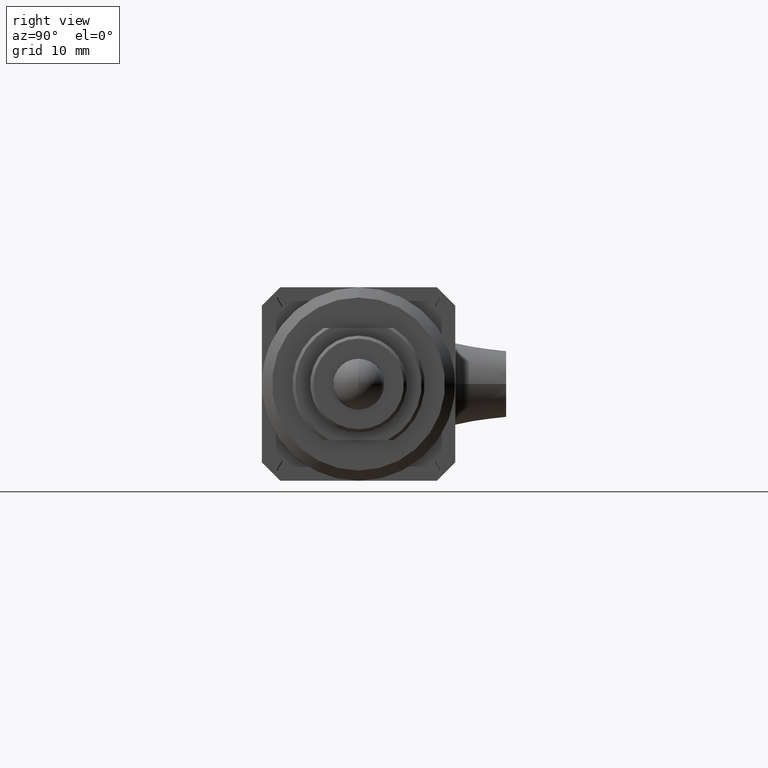
[diagram: clean part render]
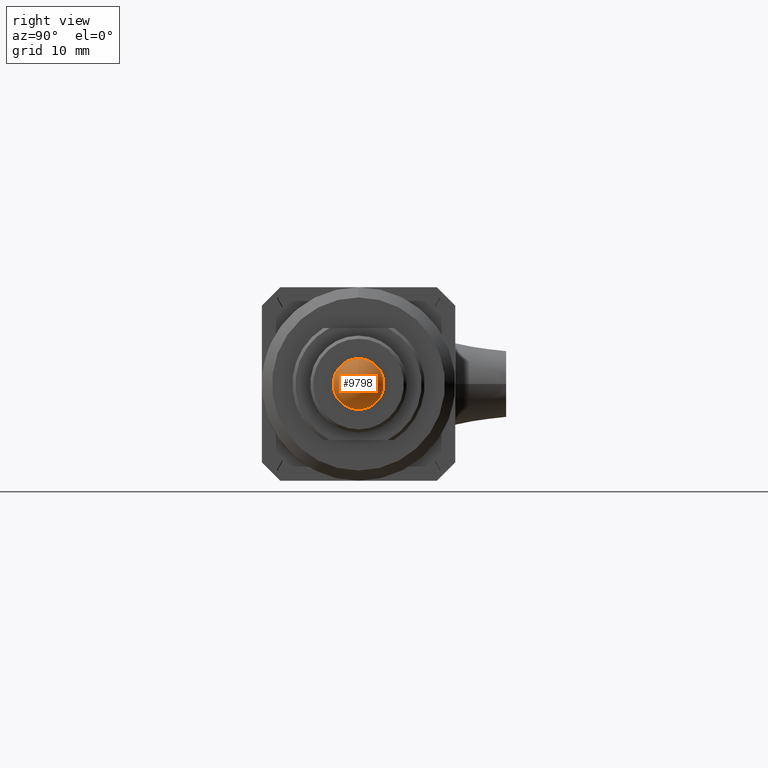
[diagram: same view with one face highlighted and labeled with its STEP entity id]
A machine part, right view. The second image highlights one B-rep face of the part: STEP entity #9798.
In plain terms, the highlighted spherical surface has radius 2.5 mm.
Its self-contained STEP definition (entity closure, byte-faithful):
#757 = CARTESIAN_POINT ( 'NONE',  ( 20.49999999999999645, 0.000000000000000000, 0.000000000000000000 ) ) ;
#1388 = DIRECTION ( 'NONE',  ( 0.000000000000000000, 0.000000000000000000, 1.000000000000000000 ) ) ;
#1641 = CARTESIAN_POINT ( 'NONE',  ( 20.49999999999999645, 0.000000000000000000, 0.000000000000000000 ) ) ;
#2151 = DIRECTION ( 'NONE',  ( 0.000000000000000000, 0.000000000000000000, -1.000000000000000000 ) ) ;
#4127 = CARTESIAN_POINT ( 'NONE',  ( 20.49999999999999645, 0.000000000000000000, -2.500000000000000000 ) ) ;
#7191 = CIRCLE ( 'NONE', #8008, 2.500000000000000000 ) ;
#8008 = AXIS2_PLACEMENT_3D ( 'NONE', #1641, #9335, #24740 ) ;
#8068 = DIRECTION ( 'NONE',  ( -1.000000000000000000, 0.000000000000000000, 0.000000000000000000 ) ) ;
#9335 = DIRECTION ( 'NONE',  ( -1.000000000000000000, 0.000000000000000000, 0.000000000000000000 ) ) ;
#9798 = ADVANCED_FACE ( 'NONE', ( #10472 ), #17100, .T. ) ;
#10187 = CIRCLE ( 'NONE', #24700, 2.500000000000000000 ) ;
#10472 = FACE_OUTER_BOUND ( 'NONE', #15349, .T. ) ;
#11934 = EDGE_CURVE ( 'NONE', #24493, #17143, #10187, .T. ) ;
#12374 = AXIS2_PLACEMENT_3D ( 'NONE', #13211, #22544, #1388 ) ;
#13211 = CARTESIAN_POINT ( 'NONE',  ( 20.49999999999999645, 0.000000000000000000, -1.530808498934191571E-16 ) ) ;
#15349 = EDGE_LOOP ( 'NONE', ( #17458, #17811 ) ) ;
#17100 = SPHERICAL_SURFACE ( 'NONE', #12374, 2.500000000000000000 ) ;
#17143 = VERTEX_POINT ( 'NONE', #4127 ) ;
#17458 = ORIENTED_EDGE ( 'NONE', *, *, #24666, .F. ) ;
#17811 = ORIENTED_EDGE ( 'NONE', *, *, #11934, .F. ) ;
#19803 = CARTESIAN_POINT ( 'NONE',  ( 20.49999999999999645, -3.061616997868383141E-16, 2.500000000000000000 ) ) ;
#22544 = DIRECTION ( 'NONE',  ( -1.000000000000000000, 0.000000000000000000, 0.000000000000000000 ) ) ;
#24493 = VERTEX_POINT ( 'NONE', #19803 ) ;
#24666 = EDGE_CURVE ( 'NONE', #17143, #24493, #7191, .T. ) ;
#24700 = AXIS2_PLACEMENT_3D ( 'NONE', #757, #8068, #2151 ) ;
#24740 = DIRECTION ( 'NONE',  ( 0.000000000000000000, 0.000000000000000000, -1.000000000000000000 ) ) ;